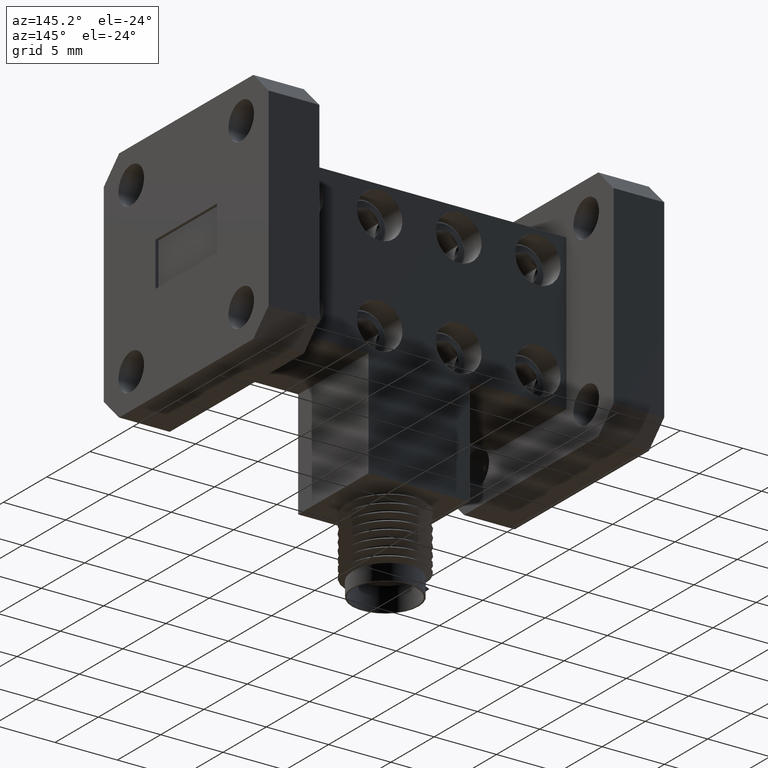
[diagram: clean part render]
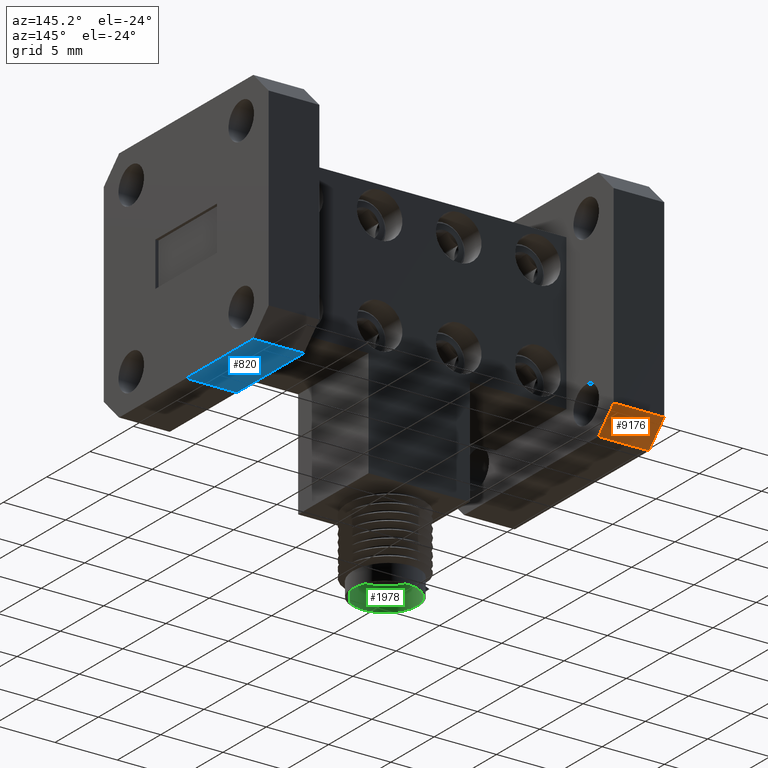
[diagram: same view with three faces highlighted in distinct colors, each labeled with its STEP entity id]
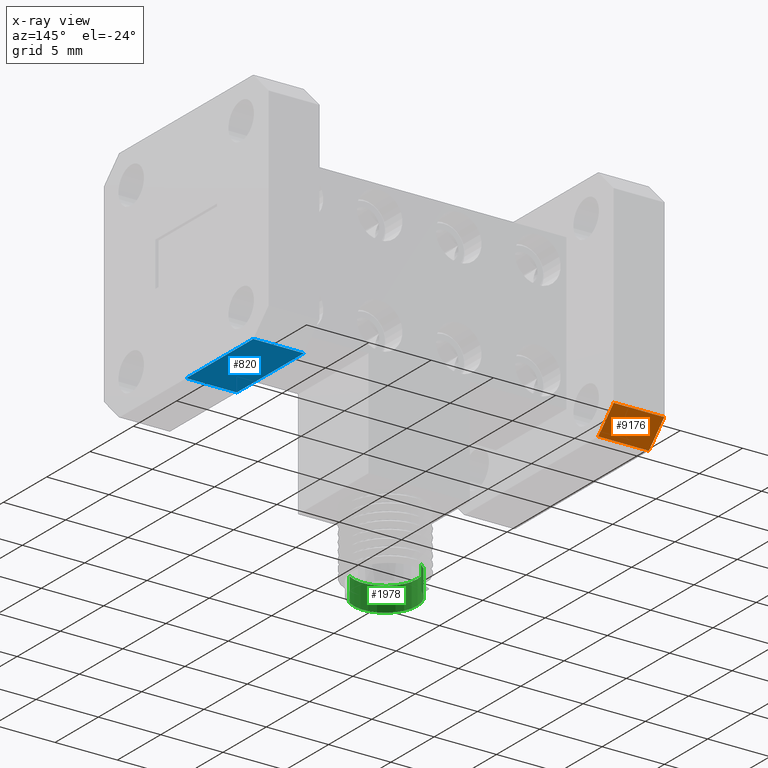
[diagram: x-ray of the same camera — body ghosted, the three highlighted faces saturated]
A machine part, auxiliary view with three faces highlighted in distinct colors.
The next image is the same camera in x-ray (body ghosted, the three faces saturated) — at least one of them is partly hidden behind the body in this view.
Their STEP definitions:

[orange] entity #9176 — the highlighted planar face has unit normal (-0, 0.7071, -0.7071).
#292 = VECTOR ( 'NONE', #9315, 39.37007874015748100 ) ;
#809 = VERTEX_POINT ( 'NONE', #8577 ) ;
#1018 = LINE ( 'NONE', #1832, #10958 ) ;
#1832 = CARTESIAN_POINT ( 'NONE',  ( -0.4793643473207041000, 0.5123681026864124200, -0.2535334925322733600 ) ) ;
#2300 = VERTEX_POINT ( 'NONE', #10226 ) ;
#2871 = VECTOR ( 'NONE', #10970, 39.37007874015748900 ) ;
#3083 = VERTEX_POINT ( 'NONE', #12003 ) ;
#3176 = EDGE_LOOP ( 'NONE', ( #4682, #9732, #8127, #3535 ) ) ;
#3410 = CARTESIAN_POINT ( 'NONE',  ( -0.4793643473207042100, 0.5473484176470416700, -0.2185531775716441900 ) ) ;
#3535 = ORIENTED_EDGE ( 'NONE', *, *, #4607, .F. ) ;
#3659 = VECTOR ( 'NONE', #8171, 39.37007874015748900 ) ;
#4419 = AXIS2_PLACEMENT_3D ( 'NONE', #11110, #9188, #6312 ) ;
#4607 = EDGE_CURVE ( 'NONE', #7653, #809, #8598, .T. ) ;
#4682 = ORIENTED_EDGE ( 'NONE', *, *, #6983, .F. ) ;
#5265 = PLANE ( 'NONE',  #4419 ) ;
#5570 = FACE_OUTER_BOUND ( 'NONE', #3176, .T. ) ;
#5573 = CARTESIAN_POINT ( 'NONE',  ( -0.4793643473207042100, 0.5823681026864124800, -0.1835334925322736100 ) ) ;
#5585 = LINE ( 'NONE', #9052, #2871 ) ;
#6312 = DIRECTION ( 'NONE',  ( 1.000000000000000000, 0.0000000000000000000, -1.639108796198557700E-016 ) ) ;
#6401 = CARTESIAN_POINT ( 'NONE',  ( -0.6393643473207042400, 0.5823681026864124800, -0.1835334925322735800 ) ) ;
#6983 = EDGE_CURVE ( 'NONE', #2300, #7653, #9384, .T. ) ;
#7372 = EDGE_CURVE ( 'NONE', #809, #3083, #5585, .T. ) ;
#7653 = VERTEX_POINT ( 'NONE', #5573 ) ;
#7743 = DIRECTION ( 'NONE',  ( 1.000000000000000000, 0.0000000000000000000, -1.639108796198557700E-016 ) ) ;
#8127 = ORIENTED_EDGE ( 'NONE', *, *, #7372, .F. ) ;
#8171 = DIRECTION ( 'NONE',  ( -7.850462293418889400E-017, 0.7071067811865489100, 0.7071067811865460200 ) ) ;
#8577 = CARTESIAN_POINT ( 'NONE',  ( -0.6393643473207042400, 0.5823681026864124800, -0.1835334925322735800 ) ) ;
#8598 = LINE ( 'NONE', #6401, #292 ) ;
#9052 = CARTESIAN_POINT ( 'NONE',  ( -0.6393643473207042400, 0.5823681026864123700, -0.1835334925322736100 ) ) ;
#9176 = ADVANCED_FACE ( 'NONE', ( #5570 ), #5265, .T. ) ;
#9188 = DIRECTION ( 'NONE',  ( -1.159024944894521200E-016, 0.7071067811865462400, -0.7071067811865489100 ) ) ;
#9315 = DIRECTION ( 'NONE',  ( -1.000000000000000000, 0.0000000000000000000, 1.639108796198557700E-016 ) ) ;
#9384 = LINE ( 'NONE', #3410, #3659 ) ;
#9732 = ORIENTED_EDGE ( 'NONE', *, *, #10177, .F. ) ;
#10177 = EDGE_CURVE ( 'NONE', #3083, #2300, #1018, .T. ) ;
#10226 = CARTESIAN_POINT ( 'NONE',  ( -0.4793643473207041000, 0.5123681026864124200, -0.2535334925322734700 ) ) ;
#10958 = VECTOR ( 'NONE', #7743, 39.37007874015748100 ) ;
#10970 = DIRECTION ( 'NONE',  ( 7.850462293418889400E-017, -0.7071067811865489100, -0.7071067811865460200 ) ) ;
#11110 = CARTESIAN_POINT ( 'NONE',  ( -0.01436434732070398200, 0.5823681026864124800, -0.1835334925322736600 ) ) ;
#12003 = CARTESIAN_POINT ( 'NONE',  ( -0.6393643473207042400, 0.5123681026864124200, -0.2535334925322733600 ) ) ;

[blue] entity #820 — the highlighted planar face has unit normal (0, 0, 1).
#18 = CARTESIAN_POINT ( 'NONE',  ( 0.4506356526792962300, 0.2073681026864123400, -0.2535334925322735900 ) ) ;
#789 = EDGE_CURVE ( 'NONE', #8961, #873, #11409, .T. ) ;
#820 = ADVANCED_FACE ( 'NONE', ( #6032 ), #11790, .F. ) ;
#873 = VERTEX_POINT ( 'NONE', #11297 ) ;
#1803 = CARTESIAN_POINT ( 'NONE',  ( 0.4506356526792961200, 0.2073287326076722300, -0.2535334925322734700 ) ) ;
#1819 = VECTOR ( 'NONE', #8296, 39.37007874015748100 ) ;
#2054 = LINE ( 'NONE', #4324, #9011 ) ;
#2267 = EDGE_CURVE ( 'NONE', #8292, #10437, #10111, .T. ) ;
#3448 = LINE ( 'NONE', #12180, #4188 ) ;
#4188 = VECTOR ( 'NONE', #8423, 39.37007874015748100 ) ;
#4324 = CARTESIAN_POINT ( 'NONE',  ( 0.6106356526792960900, 0.5123681026864124200, -0.2535334925322735900 ) ) ;
#4787 = EDGE_CURVE ( 'NONE', #10437, #8961, #3448, .T. ) ;
#5066 = DIRECTION ( 'NONE',  ( 1.639108796198557700E-016, 0.0000000000000000000, 1.000000000000000000 ) ) ;
#5104 = VECTOR ( 'NONE', #7680, 39.37007874015748100 ) ;
#5478 = CARTESIAN_POINT ( 'NONE',  ( 0.6106356526792960900, 0.5123681026864124200, -0.2535334925322735900 ) ) ;
#5684 = ORIENTED_EDGE ( 'NONE', *, *, #4787, .T. ) ;
#6032 = FACE_OUTER_BOUND ( 'NONE', #7689, .T. ) ;
#6058 = DIRECTION ( 'NONE',  ( 1.000000000000000000, 0.0000000000000000000, -1.639108796198557700E-016 ) ) ;
#7680 = DIRECTION ( 'NONE',  ( -1.110223024625156300E-016, 1.000000000000000000, 0.0000000000000000000 ) ) ;
#7689 = EDGE_LOOP ( 'NONE', ( #8256, #10732, #9941, #5684 ) ) ;
#8256 = ORIENTED_EDGE ( 'NONE', *, *, #789, .T. ) ;
#8292 = VERTEX_POINT ( 'NONE', #5478 ) ;
#8296 = DIRECTION ( 'NONE',  ( 1.110223024625156300E-016, -1.000000000000000000, 0.0000000000000000000 ) ) ;
#8423 = DIRECTION ( 'NONE',  ( -1.000000000000000000, 0.0000000000000000000, 1.639108796198557700E-016 ) ) ;
#8961 = VERTEX_POINT ( 'NONE', #18 ) ;
#9011 = VECTOR ( 'NONE', #11067, 39.37007874015748100 ) ;
#9841 = CARTESIAN_POINT ( 'NONE',  ( -0.6393643473207042400, 0.5823681026864124800, -0.2535334925322733600 ) ) ;
#9941 = ORIENTED_EDGE ( 'NONE', *, *, #2267, .T. ) ;
#10002 = CARTESIAN_POINT ( 'NONE',  ( 0.6106356526792960900, 0.2073681026864123400, -0.2535334925322735900 ) ) ;
#10111 = LINE ( 'NONE', #10313, #1819 ) ;
#10313 = CARTESIAN_POINT ( 'NONE',  ( 0.6106356526792960900, 0.5823681026864124800, -0.2535334925322735900 ) ) ;
#10437 = VERTEX_POINT ( 'NONE', #10002 ) ;
#10526 = EDGE_CURVE ( 'NONE', #873, #8292, #2054, .T. ) ;
#10732 = ORIENTED_EDGE ( 'NONE', *, *, #10526, .T. ) ;
#11067 = DIRECTION ( 'NONE',  ( 1.000000000000000000, 0.0000000000000000000, -1.639108796198557700E-016 ) ) ;
#11297 = CARTESIAN_POINT ( 'NONE',  ( 0.4506356526792961200, 0.5123681026864124200, -0.2535334925322734700 ) ) ;
#11409 = LINE ( 'NONE', #1803, #5104 ) ;
#11790 = PLANE ( 'NONE',  #11801 ) ;
#11801 = AXIS2_PLACEMENT_3D ( 'NONE', #9841, #5066, #6058 ) ;
#12180 = CARTESIAN_POINT ( 'NONE',  ( -0.6393643473207042400, 0.2073681026864123400, -0.2535334925322733600 ) ) ;

[green] entity #1978 — the highlighted cylindrical surface (partial cylindrical patch) has radius 2.54 mm, axis along (0, -0, -1).
#267 = DIRECTION ( 'NONE',  ( -0.5447019134084812900, 0.8386297308879164800, 0.0000000000000000000 ) ) ;
#310 = AXIS2_PLACEMENT_3D ( 'NONE', #12124, #4352, #3471 ) ;
#380 = ORIENTED_EDGE ( 'NONE', *, *, #5003, .F. ) ;
#1255 = VERTEX_POINT ( 'NONE', #5692 ) ;
#1335 = VECTOR ( 'NONE', #11533, 39.37007874015748100 ) ;
#1384 = CARTESIAN_POINT ( 'NONE',  ( 0.04010584402014360400, 0.1295051295976204800, -0.7185334925322731700 ) ) ;
#1728 = EDGE_CURVE ( 'NONE', #1255, #2602, #2384, .T. ) ;
#1978 = ADVANCED_FACE ( 'NONE', ( #4819 ), #8766, .F. ) ;
#2384 = LINE ( 'NONE', #5267, #2981 ) ;
#2602 = VERTEX_POINT ( 'NONE', #1384 ) ;
#2769 = CIRCLE ( 'NONE', #310, 0.1000000000000000100 ) ;
#2981 = VECTOR ( 'NONE', #11189, 39.37007874015748100 ) ;
#3133 = CARTESIAN_POINT ( 'NONE',  ( -0.06883453866155256300, 0.2972310757752038600, -0.7185334925322731700 ) ) ;
#3471 = DIRECTION ( 'NONE',  ( -0.5447019134084812900, 0.8386297308879164800, 0.0000000000000000000 ) ) ;
#3836 = ORIENTED_EDGE ( 'NONE', *, *, #12100, .T. ) ;
#4335 = VERTEX_POINT ( 'NONE', #3133 ) ;
#4352 = DIRECTION ( 'NONE',  ( 4.159853254111648900E-016, 2.196581507382373700E-017, -1.000000000000000000 ) ) ;
#4819 = FACE_OUTER_BOUND ( 'NONE', #9288, .T. ) ;
#5003 = EDGE_CURVE ( 'NONE', #1255, #7036, #5875, .T. ) ;
#5080 = CARTESIAN_POINT ( 'NONE',  ( -0.01436434732070451300, 0.2133681026864120700, -0.6425334925322728800 ) ) ;
#5267 = CARTESIAN_POINT ( 'NONE',  ( 0.04010584402014362400, 0.1295051295976204200, -0.6425334925322728800 ) ) ;
#5394 = AXIS2_PLACEMENT_3D ( 'NONE', #5080, #7979, #267 ) ;
#5517 = DIRECTION ( 'NONE',  ( 1.495015963372503100E-016, -5.183012608172936000E-017, -1.000000000000000000 ) ) ;
#5564 = CARTESIAN_POINT ( 'NONE',  ( -0.06883453866155264700, 0.2972310757752037500, -0.6425334925322728800 ) ) ;
#5692 = CARTESIAN_POINT ( 'NONE',  ( 0.04010584402014364500, 0.1295051295976204200, -0.6425334925322728800 ) ) ;
#5875 = CIRCLE ( 'NONE', #5394, 0.1000000000000000100 ) ;
#7036 = VERTEX_POINT ( 'NONE', #5564 ) ;
#7616 = ORIENTED_EDGE ( 'NONE', *, *, #1728, .T. ) ;
#7979 = DIRECTION ( 'NONE',  ( 4.159853254111648900E-016, 2.196581507382373700E-017, -1.000000000000000000 ) ) ;
#8526 = AXIS2_PLACEMENT_3D ( 'NONE', #11174, #5517, #10343 ) ;
#8766 = CYLINDRICAL_SURFACE ( 'NONE', #8526, 0.1000000000000000100 ) ;
#9288 = EDGE_LOOP ( 'NONE', ( #380, #7616, #3836, #12222 ) ) ;
#9536 = CARTESIAN_POINT ( 'NONE',  ( -0.06883453866155264700, 0.2972310757752037500, -0.6425334925322728800 ) ) ;
#9852 = EDGE_CURVE ( 'NONE', #7036, #4335, #10649, .T. ) ;
#10343 = DIRECTION ( 'NONE',  ( -0.5447019134084812900, 0.8386297308879164800, 0.0000000000000000000 ) ) ;
#10649 = LINE ( 'NONE', #9536, #1335 ) ;
#11174 = CARTESIAN_POINT ( 'NONE',  ( -0.01436434732070451300, 0.2133681026864120700, -0.6425334925322728800 ) ) ;
#11189 = DIRECTION ( 'NONE',  ( 1.495015963372503100E-016, -5.183012608172936000E-017, -1.000000000000000000 ) ) ;
#11533 = DIRECTION ( 'NONE',  ( 1.495015963372503100E-016, -5.183012608172936000E-017, -1.000000000000000000 ) ) ;
#12100 = EDGE_CURVE ( 'NONE', #2602, #4335, #2769, .T. ) ;
#12124 = CARTESIAN_POINT ( 'NONE',  ( -0.01436434732070443600, 0.2133681026864122100, -0.7185334925322731700 ) ) ;
#12222 = ORIENTED_EDGE ( 'NONE', *, *, #9852, .F. ) ;